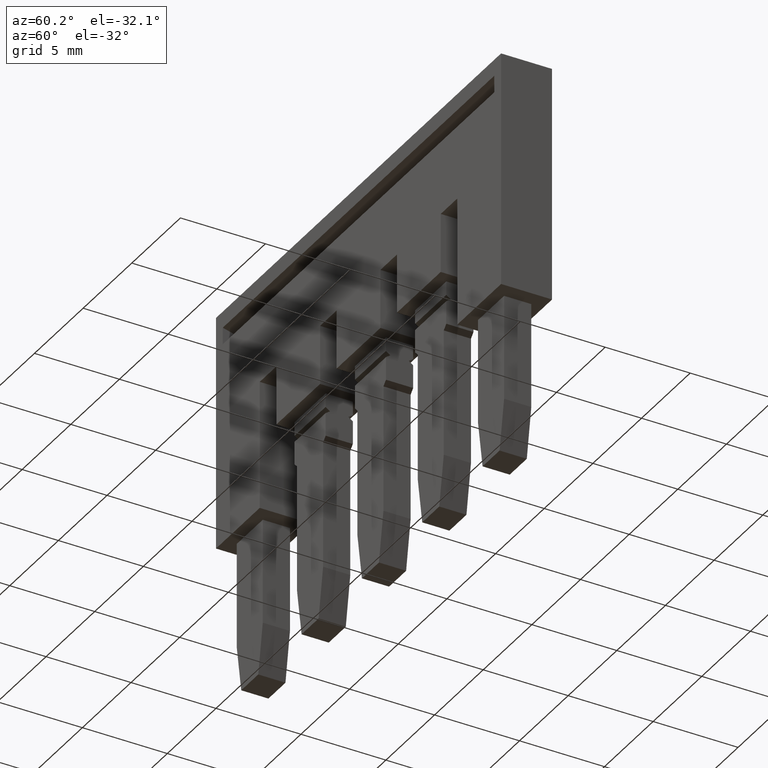
[diagram: clean part render]
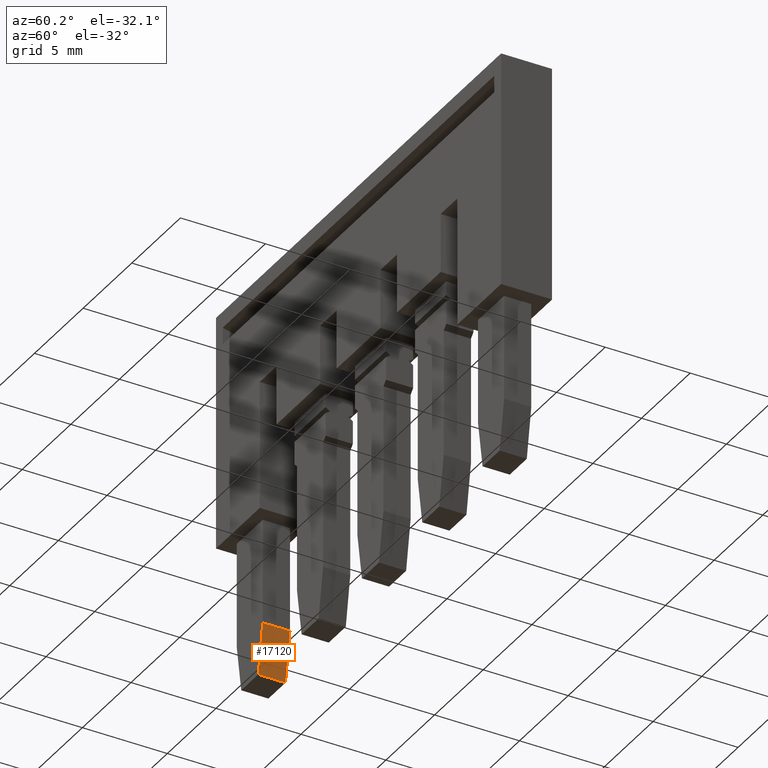
[diagram: same view with one face highlighted and labeled with its STEP entity id]
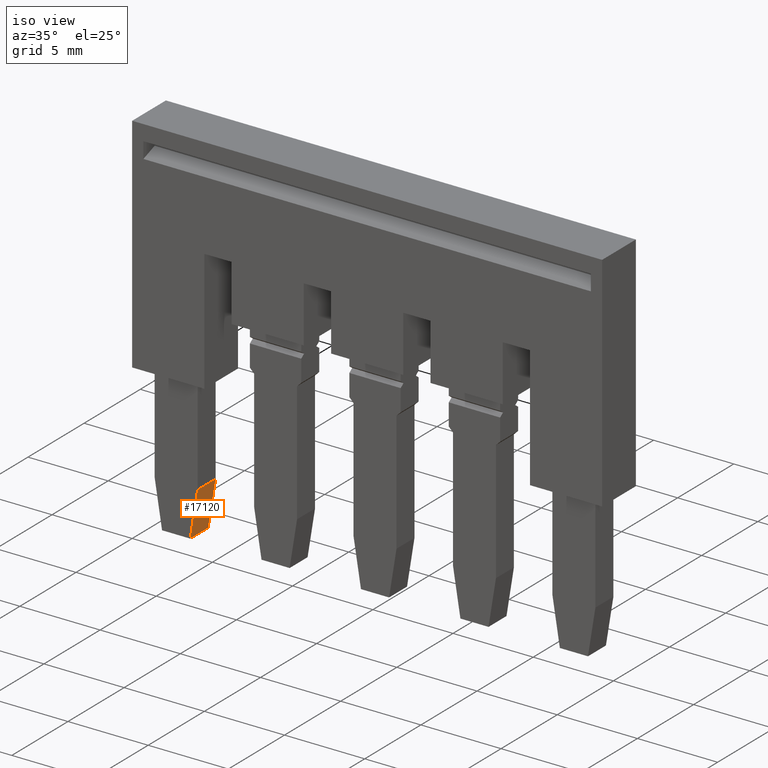
[diagram: same view with one face highlighted and labeled with its STEP entity id]
A machine part, auxiliary view. The second image highlights one B-rep face of the part: STEP entity #17120.
A second angle (iso view) of the same face is appended — the face is thin or edge-on in the first view.
In plain terms, the highlighted planar face has unit normal (-0.9872, 0, 0.1594).
Its self-contained STEP definition (entity closure, byte-faithful):
#1950=CARTESIAN_POINT('',(3.30716722169509,-32.1500000022993,
57.5831890519585));
#1960=VERTEX_POINT('',#1950);
#1990=CARTESIAN_POINT('',(3.30716722169509,-14.7145836302107,
54.7685609730336));
#2000=DIRECTION('',(-1.16661517616358E-16,0.987219178105449,
-0.159368423411924));
#2010=VECTOR('',#2000,1.);
#2020=LINE('',#1990,#2010);
#2030=CARTESIAN_POINT('',(3.30716722169509,-29.2807420564921,
57.1199999990313));
#2040=VERTEX_POINT('',#2030);
#2050=EDGE_CURVE('',#1960,#2040,#2020,.T.);
#11510=CARTESIAN_POINT('',(4.90716722169508,-29.2807420505046,
57.1199999990313));
#11520=VERTEX_POINT('',#11510);
#11550=CARTESIAN_POINT('',(4.90716722169509,-12.6051240000035,
54.4280274188107));
#11560=DIRECTION('',(-1.11022302462516E-16,-0.987219178105449,
0.159368423411924));
#11570=VECTOR('',#11560,1.);
#11580=LINE('',#11550,#11570);
#11590=CARTESIAN_POINT('',(4.90716722169508,-32.1500000022993,
57.5831890519599));
#11600=VERTEX_POINT('',#11590);
#11610=EDGE_CURVE('',#11520,#11600,#11580,.T.);
#12180=CARTESIAN_POINT('',(5.60716722168534,-29.2807420505046,
57.1199999990313));
#12190=DIRECTION('',(-1.,-3.03446512339196E-15,-3.67394039744231E-16));
#12200=VECTOR('',#12190,1.);
#12210=LINE('',#12180,#12200);
#12220=EDGE_CURVE('',#11520,#2040,#12210,.T.);
#12730=CARTESIAN_POINT('',(5.60716722168534,-32.1500000022993,
57.5831890519599));
#12740=DIRECTION('',(-1.,2.2665226765012E-27,-8.57252759407547E-16));
#12750=VECTOR('',#12740,1.);
#12760=LINE('',#12730,#12750);
#12770=EDGE_CURVE('',#11600,#1960,#12760,.T.);
#17010=CARTESIAN_POINT('',(4.73716962167682,-29.3736606429153,
57.1350000009625));
#17020=DIRECTION('',(-8.46296364570585E-16,0.159368423411924,
0.987219178105449));
#17030=DIRECTION('',(-1.36619020727665E-16,-0.987219178105449,
0.159368423411924));
#17040=AXIS2_PLACEMENT_3D('',#17010,#17020,#17030);
#17050=PLANE('',#17040);
#17060=ORIENTED_EDGE('',*,*,#12770,.T.);
#17070=ORIENTED_EDGE('',*,*,#11610,.T.);
#17080=ORIENTED_EDGE('',*,*,#12220,.F.);
#17090=ORIENTED_EDGE('',*,*,#2050,.T.);
#17100=EDGE_LOOP('',(#17090,#17080,#17070,#17060));
#17110=FACE_OUTER_BOUND('',#17100,.T.);
#17120=ADVANCED_FACE('',(#17110),#17050,.F.);